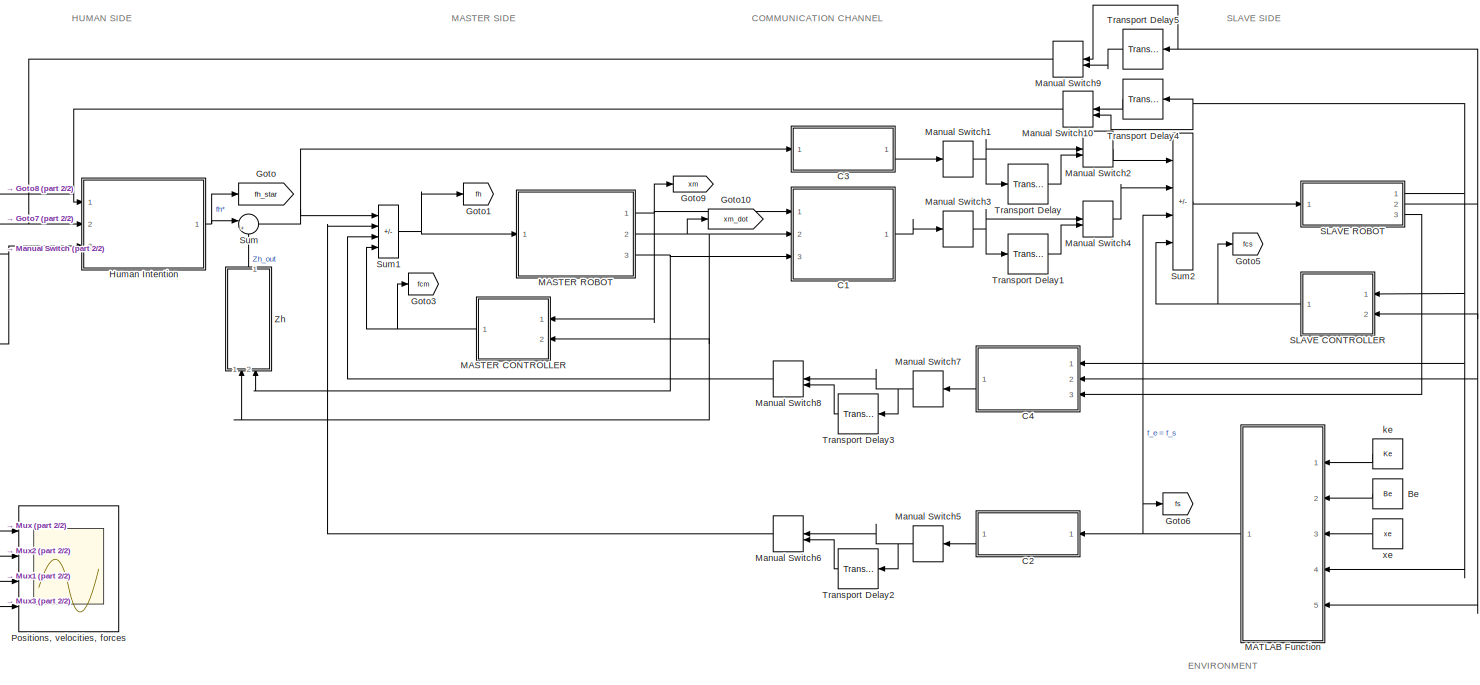
[diagram: root canvas - part 1/2, most of the canvas]
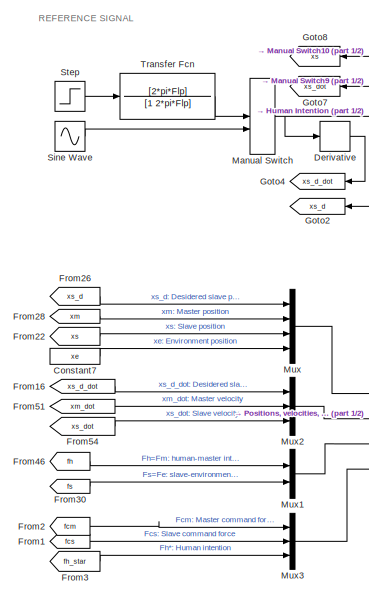
[diagram: root canvas - part 2/2, left side, full height]
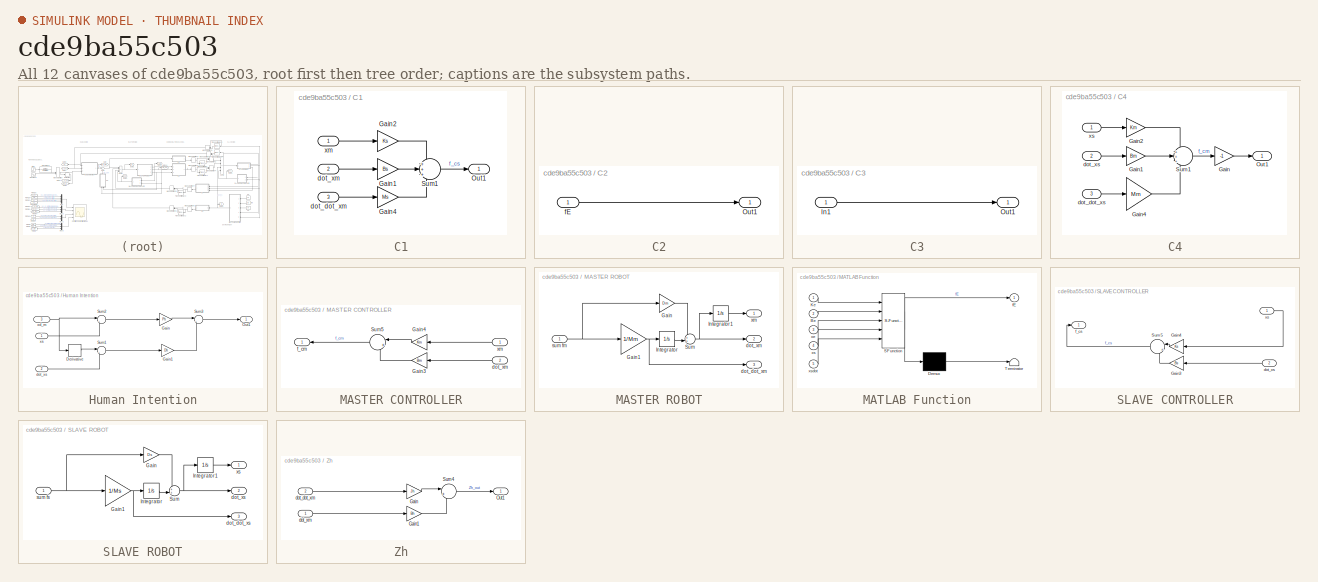
[diagram: thumbnail index - all 12 canvases of the model, root first then tree order]
MODEL slx_cde9ba55c503
KIND model
CONFIG AbsTol = auto
CONFIG EnableMultiTasking = off
CONFIG FixedStep = auto
CONFIG MaxStep = auto
CONFIG MinStep = auto
CONFIG RelTol = 1e-3
CONFIG SampleTimeConstraint = Unconstrained
CONFIG SolverName = VariableStepAuto
CONFIG StartTime = 0.0
CONFIG StopTime = 3
BLOCK [Constant] Be
  Value = Be
BLOCK [SubSystem] C1
  Ports = [3, 1]
  RequestExecContextInheritance = off
BLOCK [Gain] C1/Gain1
  Gain = Bs
  NameLocation = top
BLOCK [Gain] C1/Gain2
  Gain = Ks
  NameLocation = top
BLOCK [Gain] C1/Gain4
  Gain = Ms
  NameLocation = top
BLOCK [Outport] C1/Out1
BLOCK [Sum] C1/Sum1
  Inputs = +++
  NameLocation = top
  Ports = [3, 1]
BLOCK [Inport] C1/dot_dot_xm
  Port = 3
BLOCK [Inport] C1/dot_xm
  Port = 2
BLOCK [Inport] C1/xm
BLOCK [SubSystem] C2
  Ports = [1, 1]
  RequestExecContextInheritance = off
BLOCK [Outport] C2/Out1
BLOCK [Inport] C2/fE
BLOCK [SubSystem] C3
  Ports = [1, 1]
  RequestExecContextInheritance = off
BLOCK [Inport] C3/In1
BLOCK [Outport] C3/Out1
BLOCK [SubSystem] C4
  Ports = [3, 1]
  RequestExecContextInheritance = off
BLOCK [Gain] C4/Gain
  Gain = -1
BLOCK [Gain] C4/Gain1
  Gain = Bm
  NameLocation = top
BLOCK [Gain] C4/Gain2
  Gain = Km
  NameLocation = top
BLOCK [Gain] C4/Gain4
  Gain = Mm
  NameLocation = top
BLOCK [Outport] C4/Out1
BLOCK [Sum] C4/Sum1
  Inputs = +++
  NameLocation = top
  Ports = [3, 1]
BLOCK [Inport] C4/dot_dot_xs
  Port = 3
BLOCK [Inport] C4/dot_xs
  Port = 2
BLOCK [Inport] C4/xs
BLOCK [Constant] Constant7
  Value = xe
BLOCK [Derivative] Derivative
BLOCK [From] From1
  GotoTag = fcs
BLOCK [From] From16
  GotoTag = xs_d_dot
BLOCK [From] From2
  GotoTag = fcm
BLOCK [From] From22
  GotoTag = xs
BLOCK [From] From26
  GotoTag = xs_d
BLOCK [From] From28
  GotoTag = xm
BLOCK [From] From3
  GotoTag = fh_star
BLOCK [From] From30
  GotoTag = fs
BLOCK [From] From46
  GotoTag = fh
BLOCK [From] From51
  GotoTag = xm_dot
BLOCK [From] From54
  GotoTag = xs_dot
BLOCK [Goto] Goto
  GotoTag = fh_star
BLOCK [Goto] Goto1
  GotoTag = fh
BLOCK [Goto] Goto10
  GotoTag = xm_dot
BLOCK [Goto] Goto2
  GotoTag = xs_d
  NameLocation = top
BLOCK [Goto] Goto3
  GotoTag = fcm
BLOCK [Goto] Goto4
  GotoTag = xs_d_dot
  NameLocation = top
BLOCK [Goto] Goto5
  GotoTag = fcs
BLOCK [Goto] Goto6
  GotoTag = fs
BLOCK [Goto] Goto7
  GotoTag = xs_dot
BLOCK [Goto] Goto8
  GotoTag = xs
BLOCK [Goto] Goto9
  GotoTag = xm
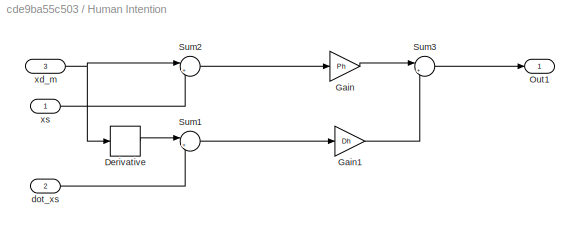
BLOCK [SubSystem] Human Intention
  Ports = [3, 1]
  RequestExecContextInheritance = off
BLOCK [Derivative] Human Intention/Derivative
BLOCK [Gain] Human Intention/Gain
  Gain = Ph
BLOCK [Gain] Human Intention/Gain1
  Gain = Dh
BLOCK [Outport] Human Intention/Out1
BLOCK [Sum] Human Intention/Sum1
  Inputs = |+-
  Ports = [2, 1]
BLOCK [Sum] Human Intention/Sum2
  Inputs = |+-
  Ports = [2, 1]
BLOCK [Sum] Human Intention/Sum3
  Inputs = |++
  Ports = [2, 1]
BLOCK [Inport] Human Intention/dot_xs
  Port = 2
BLOCK [Inport] Human Intention/xd_m
  Port = 3
BLOCK [Inport] Human Intention/xs
BLOCK [SubSystem] MASTER CONTROLLER
  Ports = [2, 1]
  RequestExecContextInheritance = off
BLOCK [Gain] MASTER CONTROLLER/Gain3
  Gain = Bm
  NameLocation = top
BLOCK [Gain] MASTER CONTROLLER/Gain4
  Gain = Km
  NameLocation = top
BLOCK [Sum] MASTER CONTROLLER/Sum5
  Inputs = |++
  NameLocation = top
  Ports = [2, 1]
BLOCK [Inport] MASTER CONTROLLER/dot_xm
  Port = 2
BLOCK [Outport] MASTER CONTROLLER/f_cm
BLOCK [Inport] MASTER CONTROLLER/xm
BLOCK [SubSystem] MASTER ROBOT
  Ports = [1, 3]
  RequestExecContextInheritance = off
BLOCK [Gain] MASTER ROBOT/Gain
  Gain = Dm
BLOCK [Gain] MASTER ROBOT/Gain1
  Gain = 1/Mm
BLOCK [Integrator] MASTER ROBOT/Integrator
  Ports = [1, 1]
BLOCK [Integrator] MASTER ROBOT/Integrator1
  Ports = [1, 1]
BLOCK [Sum] MASTER ROBOT/Sum
  Inputs = ++|
  Ports = [2, 1]
BLOCK [Outport] MASTER ROBOT/dot_dot_xm
  Port = 3
BLOCK [Outport] MASTER ROBOT/dot_xm
  Port = 2
BLOCK [Inport] MASTER ROBOT/sum fm
BLOCK [Outport] MASTER ROBOT/xm
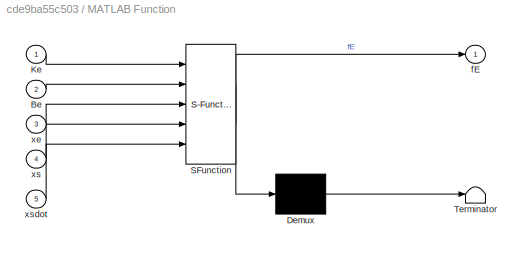
BLOCK [SubSystem] MATLAB Function
  ErrorFcn = Stateflow.Translate.translate
  PermitHierarchicalResolution = ExplicitOnly
  Ports = [5, 1]
  RequestExecContextInheritance = off
  SFBlockType = MATLAB Function
  TreatAsAtomicUnit = on
BLOCK [Demux] MATLAB Function/ Demux 
  Outputs = 1
  Ports = [1, 1]
BLOCK [S-Function] MATLAB Function/ SFunction 
  EnableBusSupport = on
  FunctionName = sf_sfun
  PortCounts = [5 2]
  Ports = [5, 2]
  SFcnIsStateOwnerBlock = off
  SFunctionDeploymentMode = off
  Tag = Stateflow S-Function 2
BLOCK [Terminator] MATLAB Function/ Terminator 
BLOCK [Inport] MATLAB Function/Be
  Port = 2
BLOCK [Inport] MATLAB Function/Ke
BLOCK [Outport] MATLAB Function/fE
BLOCK [Inport] MATLAB Function/xe
  Port = 3
BLOCK [Inport] MATLAB Function/xs
  Port = 4
BLOCK [Inport] MATLAB Function/xsdot
  Port = 5
BLOCK [ManualSwitch] Manual Switch
  CurrentSetting = 0
BLOCK [ManualSwitch] Manual Switch1
  CurrentSetting = 0
BLOCK [ManualSwitch] Manual Switch10
  CurrentSetting = 0
BLOCK [ManualSwitch] Manual Switch2
BLOCK [ManualSwitch] Manual Switch3
BLOCK [ManualSwitch] Manual Switch4
BLOCK [ManualSwitch] Manual Switch5
BLOCK [ManualSwitch] Manual Switch6
BLOCK [ManualSwitch] Manual Switch7
BLOCK [ManualSwitch] Manual Switch8
BLOCK [ManualSwitch] Manual Switch9
BLOCK [Mux] Mux
  DisplayOption = bar
  Ports = [4, 1]
BLOCK [Mux] Mux1
  DisplayOption = bar
  Inputs = 2
  Ports = [2, 1]
BLOCK [Mux] Mux2
  DisplayOption = bar
  Inputs = 3
  Ports = [3, 1]
BLOCK [Mux] Mux3
  DisplayOption = bar
  Inputs = 3
  Ports = [3, 1]
BLOCK [Scope] Positions, velocities, forces
  Floating = off
  NumInputPorts = 4
  Ports = [4]
  ScopeSpecificationString = Simulink.scopes.TimeScopeBlockCfg('CurrentConfiguration', extmgr.ConfigurationSet(extmgr.Configuration('Core','General UI',true),extmgr.Configuration('Core','Source UI',true),extmgr.Configuration('Sources','WiredSimulink',true,'DataLogging',true,'SampleTime','Ts'),extmgr.Configuration('Visuals','Time Domain',true,'SerializedDisplays',{struct('MinYLimReal','-1.3125','MaxYLimReal','1.8125','YLabelRe...<+4572ch>
BLOCK [SubSystem] SLAVE CONTROLLER
  Ports = [2, 1]
  RequestExecContextInheritance = off
BLOCK [Gain] SLAVE CONTROLLER/Gain3
  Gain = Bs
  NameLocation = top
BLOCK [Gain] SLAVE CONTROLLER/Gain4
  Gain = Ks
  NameLocation = top
BLOCK [Sum] SLAVE CONTROLLER/Sum5
  Inputs = |++
  NameLocation = top
  Ports = [2, 1]
BLOCK [Inport] SLAVE CONTROLLER/dot_xs
  Port = 2
BLOCK [Outport] SLAVE CONTROLLER/f_cs
BLOCK [Inport] SLAVE CONTROLLER/xs
BLOCK [SubSystem] SLAVE ROBOT
  Ports = [1, 3]
  RequestExecContextInheritance = off
BLOCK [Gain] SLAVE ROBOT/Gain
  Gain = Ds
BLOCK [Gain] SLAVE ROBOT/Gain1
  Gain = 1/Ms
BLOCK [Integrator] SLAVE ROBOT/Integrator
  Ports = [1, 1]
BLOCK [Integrator] SLAVE ROBOT/Integrator1
  Ports = [1, 1]
BLOCK [Sum] SLAVE ROBOT/Sum
  Inputs = ++|
  Ports = [2, 1]
BLOCK [Outport] SLAVE ROBOT/dot_dot_xs
  Port = 3
BLOCK [Outport] SLAVE ROBOT/dot_xs
  Port = 2
BLOCK [Inport] SLAVE ROBOT/sum fs
BLOCK [Outport] SLAVE ROBOT/xs
BLOCK [Sin] Sine Wave
  Amplitude = A
  Frequency = Fc*2*pi
  Ports = [0, 1]
  SampleTime = 0
BLOCK [Step] Step
  After = A
  SampleTime = 0
BLOCK [Sum] Sum
  Inputs = |+-
  Ports = [2, 1]
BLOCK [Sum] Sum1
  IconShape = rectangular
  Inputs = +---
  Ports = [4, 1]
BLOCK [Sum] Sum2
  IconShape = rectangular
  Inputs = ++--
  Ports = [4, 1]
BLOCK [TransferFcn] Transfer Fcn
  Denominator = [1 2*pi*Flp]
  Numerator = [2*pi*Flp]
BLOCK [TransportDelay] Transport Delay
  DelayTime = d
  Ports = [1, 1]
BLOCK [TransportDelay] Transport Delay1
  DelayTime = d
  Ports = [1, 1]
BLOCK [TransportDelay] Transport Delay2
  DelayTime = d
  Ports = [1, 1]
BLOCK [TransportDelay] Transport Delay3
  DelayTime = d
  Ports = [1, 1]
BLOCK [TransportDelay] Transport Delay4
  DelayTime = d
  Ports = [1, 1]
BLOCK [TransportDelay] Transport Delay5
  DelayTime = d
  Ports = [1, 1]
BLOCK [SubSystem] Zh
  NameLocation = right
  Ports = [2, 1]
  RequestExecContextInheritance = off
BLOCK [Gain] Zh/Gain
  Gain = Jh
BLOCK [Gain] Zh/Gain1
  Gain = Bh
BLOCK [Outport] Zh/Out1
BLOCK [Sum] Zh/Sum4
  Inputs = |++
  Ports = [2, 1]
BLOCK [Inport] Zh/dot_dot_xm
  Port = 2
BLOCK [Inport] Zh/dot_xm
BLOCK [Constant] ke
  Value = Ke
BLOCK [Constant] xe
  Value = xe
ANNOTATION (root): COMMUNICATION CHANNEL
ANNOTATION (root): ENVIRONMENT
ANNOTATION (root): HUMAN SIDE
ANNOTATION (root): MASTER SIDE
ANNOTATION (root): REFERENCE SIGNAL
ANNOTATION (root): SLAVE SIDE
LINE Be:1 -> MATLAB Function:2
LINE C1/Gain1:1 -> C1/Sum1:2
LINE C1/Gain2:1 -> C1/Sum1:1
LINE C1/Gain4:1 -> C1/Sum1:3
LINE C1/Sum1:1 -> C1/Out1:1
LINE C1/dot_dot_xm:1 -> C1/Gain4:1
LINE C1/dot_xm:1 -> C1/Gain1:1
LINE C1/xm:1 -> C1/Gain2:1
LINE C1:1 -> Manual Switch3:1
LINE C2/fE:1 -> C2/Out1:1
LINE C2:1 -> Manual Switch5:1
LINE C3/In1:1 -> C3/Out1:1
LINE C3:1 -> Manual Switch1:1
LINE C4/Gain1:1 -> C4/Sum1:2
LINE C4/Gain2:1 -> C4/Sum1:1
LINE C4/Gain4:1 -> C4/Sum1:3
LINE C4/Gain:1 -> C4/Out1:1
LINE C4/Sum1:1 -> C4/Gain:1
LINE C4/dot_dot_xs:1 -> C4/Gain4:1
LINE C4/dot_xs:1 -> C4/Gain1:1
LINE C4/xs:1 -> C4/Gain2:1
LINE C4:1 -> Manual Switch7:1
LINE Constant7:1 -> Mux:4
LINE Derivative:1 -> Goto4:1
LINE From16:1 -> Mux2:1
LINE From1:1 -> Mux3:2
LINE From22:1 -> Mux:3
LINE From26:1 -> Mux:1
LINE From28:1 -> Mux:2
LINE From2:1 -> Mux3:1
LINE From30:1 -> Mux1:2
LINE From3:1 -> Mux3:3
LINE From46:1 -> Mux1:1
LINE From51:1 -> Mux2:2
LINE From54:1 -> Mux2:3
LINE Human Intention/Derivative:1 -> Human Intention/Sum1:1
LINE Human Intention/Gain1:1 -> Human Intention/Sum3:2
LINE Human Intention/Gain:1 -> Human Intention/Sum3:1
LINE Human Intention/Sum1:1 -> Human Intention/Gain1:1
LINE Human Intention/Sum2:1 -> Human Intention/Gain:1
LINE Human Intention/Sum3:1 -> Human Intention/Out1:1
LINE Human Intention/dot_xs:1 -> Human Intention/Sum1:2
NET Human Intention/xd_m:1 -> Human Intention/Derivative:1, Human Intention/Sum2:1
LINE Human Intention/xs:1 -> Human Intention/Sum2:2
NET Human Intention:1 -> Goto:1, Sum:1
LINE MASTER CONTROLLER/Gain3:1 -> MASTER CONTROLLER/Sum5:2
LINE MASTER CONTROLLER/Gain4:1 -> MASTER CONTROLLER/Sum5:1
LINE MASTER CONTROLLER/Sum5:1 -> MASTER CONTROLLER/f_cm:1
LINE MASTER CONTROLLER/dot_xm:1 -> MASTER CONTROLLER/Gain3:1
LINE MASTER CONTROLLER/xm:1 -> MASTER CONTROLLER/Gain4:1
NET MASTER CONTROLLER:1 -> Goto3:1, Sum1:4
NET MASTER ROBOT/Gain1:1 -> MASTER ROBOT/Integrator:1, MASTER ROBOT/dot_dot_xm:1
LINE MASTER ROBOT/Gain:1 -> MASTER ROBOT/Sum:1
LINE MASTER ROBOT/Integrator1:1 -> MASTER ROBOT/xm:1
LINE MASTER ROBOT/Integrator:1 -> MASTER ROBOT/Sum:2
NET MASTER ROBOT/Sum:1 -> MASTER ROBOT/Integrator1:1, MASTER ROBOT/dot_xm:1
NET MASTER ROBOT/sum fm:1 -> MASTER ROBOT/Gain1:1, MASTER ROBOT/Gain:1
NET MASTER ROBOT:1 -> C1:1, Goto9:1, MASTER CONTROLLER:1
NET MASTER ROBOT:2 -> C1:2, Goto10:1, MASTER CONTROLLER:2, Zh:1
NET MASTER ROBOT:3 -> C1:3, Zh:2
NET MATLAB Function:1 -> C2:1, Goto6:1, Sum2:3
NET Manual Switch10:1 -> Goto8:1, Human Intention:1
NET Manual Switch1:1 -> Manual Switch2:1, Transport Delay:1
LINE Manual Switch2:1 -> Sum2:1
NET Manual Switch3:1 -> Manual Switch4:1, Transport Delay1:1
LINE Manual Switch4:1 -> Sum2:2
NET Manual Switch5:1 -> Manual Switch6:1, Transport Delay2:1
LINE Manual Switch6:1 -> Sum1:2
NET Manual Switch7:1 -> Manual Switch8:1, Transport Delay3:1
LINE Manual Switch8:1 -> Sum1:3
NET Manual Switch9:1 -> Goto7:1, Human Intention:2
NET Manual Switch:1 -> Derivative:1, Goto2:1, Human Intention:3
LINE Mux1:1 -> Positions, velocities, forces:3
LINE Mux2:1 -> Positions, velocities, forces:2
LINE Mux3:1 -> Positions, velocities, forces:4
LINE Mux:1 -> Positions, velocities, forces:1
LINE SLAVE CONTROLLER/Gain3:1 -> SLAVE CONTROLLER/Sum5:2
LINE SLAVE CONTROLLER/Gain4:1 -> SLAVE CONTROLLER/Sum5:1
LINE SLAVE CONTROLLER/Sum5:1 -> SLAVE CONTROLLER/f_cs:1
LINE SLAVE CONTROLLER/dot_xs:1 -> SLAVE CONTROLLER/Gain3:1
LINE SLAVE CONTROLLER/xs:1 -> SLAVE CONTROLLER/Gain4:1
NET SLAVE CONTROLLER:1 -> Goto5:1, Sum2:4
NET SLAVE ROBOT/Gain1:1 -> SLAVE ROBOT/Integrator:1, SLAVE ROBOT/dot_dot_xs:1
LINE SLAVE ROBOT/Gain:1 -> SLAVE ROBOT/Sum:1
LINE SLAVE ROBOT/Integrator1:1 -> SLAVE ROBOT/xs:1
LINE SLAVE ROBOT/Integrator:1 -> SLAVE ROBOT/Sum:2
NET SLAVE ROBOT/Sum:1 -> SLAVE ROBOT/Integrator1:1, SLAVE ROBOT/dot_xs:1
NET SLAVE ROBOT/sum fs:1 -> SLAVE ROBOT/Gain1:1, SLAVE ROBOT/Gain:1
NET SLAVE ROBOT:1 -> C4:1, MATLAB Function:4, Manual Switch10:2, SLAVE CONTROLLER:1, Transport Delay4:1
NET SLAVE ROBOT:2 -> C4:2, MATLAB Function:5, Manual Switch9:1, SLAVE CONTROLLER:2, Transport Delay5:1
LINE SLAVE ROBOT:3 -> C4:3
LINE Sine Wave:1 -> Manual Switch:2
LINE Step:1 -> Transfer Fcn:1
NET Sum1:1 -> Goto1:1, MASTER ROBOT:1
LINE Sum2:1 -> SLAVE ROBOT:1
NET Sum:1 -> C3:1, Sum1:1
LINE Transfer Fcn:1 -> Manual Switch:1
LINE Transport Delay1:1 -> Manual Switch4:2
LINE Transport Delay2:1 -> Manual Switch6:2
LINE Transport Delay3:1 -> Manual Switch8:2
LINE Transport Delay4:1 -> Manual Switch10:1
LINE Transport Delay5:1 -> Manual Switch9:2
LINE Transport Delay:1 -> Manual Switch2:2
LINE Zh/Gain1:1 -> Zh/Sum4:2
LINE Zh/Gain:1 -> Zh/Sum4:1
LINE Zh/Sum4:1 -> Zh/Out1:1
LINE Zh/dot_dot_xm:1 -> Zh/Gain:1
LINE Zh/dot_xm:1 -> Zh/Gain1:1
LINE Zh:1 -> Sum:2
LINE ke:1 -> MATLAB Function:1
LINE xe:1 -> MATLAB Function:3
note: NET lines group one-source signal fan-out (src -> all destinations, sorted); 1:1 wires keep LINE
CHART MATLAB Function states=1 transitions=1
  STATE_LABEL 'eML_blk_kernel()'
  STATE_LABEL 'SCRIPT:\nfunction fE = environment(Ke, Be, xe, xs, xsdot)\n    if xs > xe\n        fE = Ke * (xs - xe) + Be * xsdot; % Plot both contributions Ke and Be\n    else\n        fE = 0;\n    end\nend\n'
CHART  states=0 transitions=0
